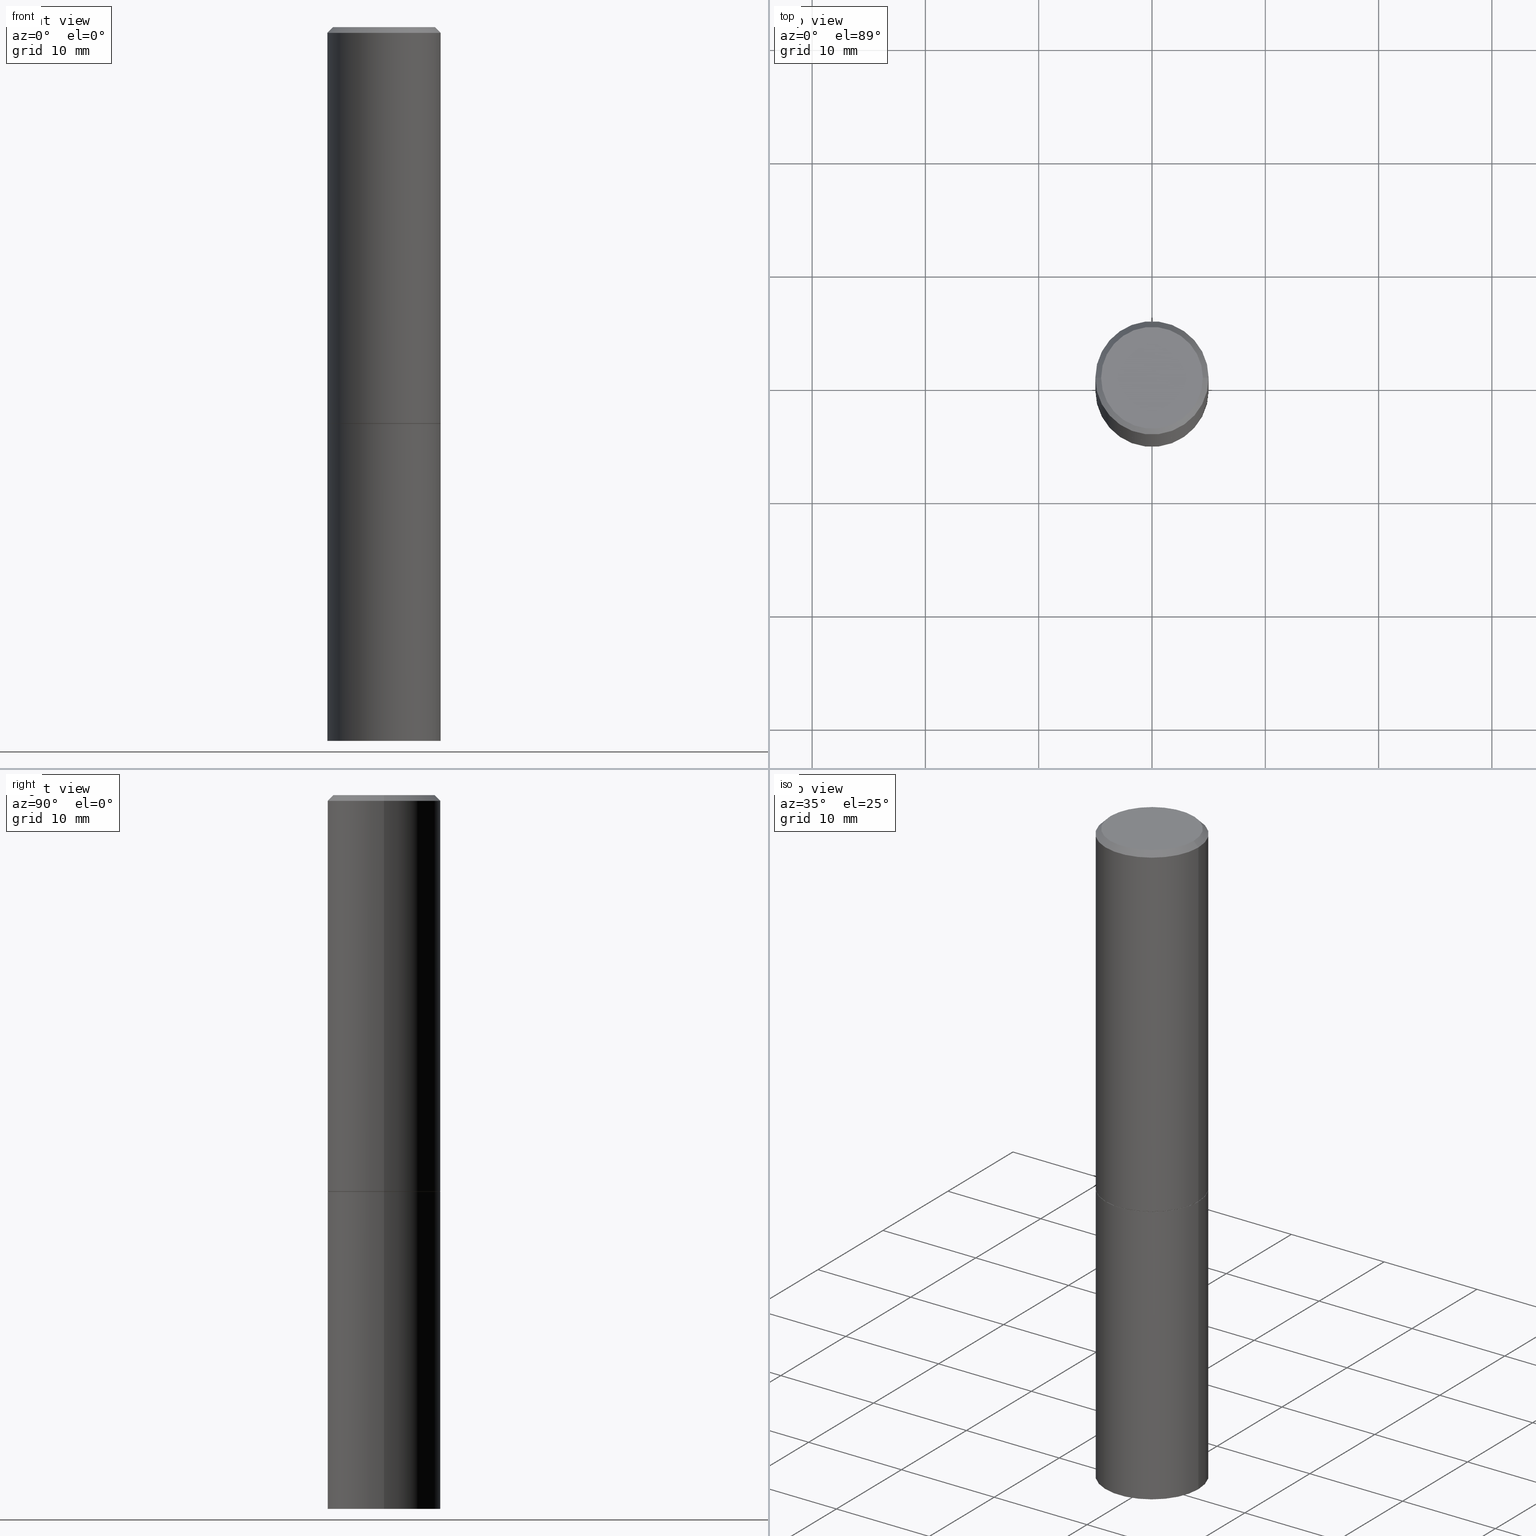
[diagram: canonical four-view strip — front | top / right | iso, engineering-drawing reading convention]
A machine part, canonical four-view strip (front | top / right | iso — engineering-drawing reading convention). The complete STEP part file that produces these views, byte-faithful:
ISO-10303-21;
HEADER;
FILE_DESCRIPTION (( 'STEP AP203' ),
    '1' );
FILE_NAME ('82986.STEP',
    '2024-02-29T20:51:39',
    ( '' ),
    ( '' ),
    'SwSTEP 2.0',
    'SolidWorks 2023',
    '' );
FILE_SCHEMA (( 'CONFIG_CONTROL_DESIGN' ));
ENDSEC;

DATA;
#1 = CARTESIAN_POINT ( 'NONE',  ( 3.369611468042499724E-29, -4.810912136791970439E-15, -1.377900000000000125 ) ) ;
#2 = CC_DESIGN_DATE_AND_TIME_ASSIGNMENT ( #222, #160, ( #39 ) ) ;
#3 = CYLINDRICAL_SURFACE ( 'NONE', #239, 0.1968500000000000250 ) ;
#4 = CARTESIAN_POINT ( 'NONE',  ( 0.000000000000000000, 0.000000000000000000, 0.000000000000000000 ) ) ;
#5 = DIRECTION ( 'NONE',  ( -1.000000000000000000, 6.982962677686265922E-15, -4.876176775795935793E-29 ) ) ;
#6 = CLOSED_SHELL ( 'NONE', ( #296, #141, #340, #243, #123, #98, #76, #192 ) ) ;
#7 =( NAMED_UNIT ( * ) SI_UNIT ( $, .STERADIAN. ) SOLID_ANGLE_UNIT ( ) );
#8 = EDGE_CURVE ( 'NONE', #301, #14, #127, .T. ) ;
#9 = CONICAL_SURFACE ( 'NONE', #138, 0.1958499999999999963, 0.7853981633975165577 ) ;
#10 = AXIS2_PLACEMENT_3D ( 'NONE', #164, #58, #174 ) ;
#11 = CARTESIAN_POINT ( 'NONE',  ( 3.369611468042499724E-29, -4.810912136791970439E-15, -1.377900000000000125 ) ) ;
#12 = APPROVAL ( #89, 'UNSPECIFIED' ) ;
#13 = PERSON_AND_ORGANIZATION ( #113, #158 ) ;
#14 = VERTEX_POINT ( 'NONE', #44 ) ;
#15 = COORDINATED_UNIVERSAL_TIME_OFFSET ( 5, 0, .BEHIND. ) ;
#16 = CARTESIAN_POINT ( 'NONE',  ( -0.1968500000000000250, -5.336713275418556283E-15, -2.480300000000000171 ) ) ;
#17 = EDGE_CURVE ( 'NONE', #14, #152, #156, .T. ) ;
#18 = ORIENTED_EDGE ( 'NONE', *, *, #229, .F. ) ;
#19 = COORDINATED_UNIVERSAL_TIME_OFFSET ( 5, 0, .BEHIND. ) ;
#20 = ORIENTED_EDGE ( 'NONE', *, *, #148, .F. ) ;
#21 = ORIENTED_EDGE ( 'NONE', *, *, #236, .T. ) ;
#22 = EDGE_LOOP ( 'NONE', ( #101, #149, #20, #188 ) ) ;
#23 = PERSON_AND_ORGANIZATION_ROLE ( 'design_supplier' ) ;
#24 = ORIENTED_EDGE ( 'NONE', *, *, #107, .F. ) ;
#25 = CARTESIAN_POINT ( 'NONE',  ( 3.369611468042499724E-29, -4.810912136791970439E-15, -1.377900000000000125 ) ) ;
#26 = AXIS2_PLACEMENT_3D ( 'NONE', #291, #29, #5 ) ;
#27 = DIRECTION ( 'NONE',  ( 2.438088387897960049E-29, -3.491481338843145188E-15, -1.000000000000000000 ) ) ;
#28 = CARTESIAN_POINT ( 'NONE',  ( 3.369611468042499163E-29, -4.810912136791969650E-15, -1.377899999999999903 ) ) ;
#29 = DIRECTION ( 'NONE',  ( 2.438088387897960049E-29, -3.491481338843145188E-15, -1.000000000000000000 ) ) ;
#30 = DIRECTION ( 'NONE',  ( -1.000000000000000000, 6.982962677686265922E-15, -4.876176775795935793E-29 ) ) ;
#31 = CIRCLE ( 'NONE', #329, 0.1968499999999997752 ) ;
#32 = CONICAL_SURFACE ( 'NONE', #322, 0.1968499999999997752, 0.7853981633974469467 ) ;
#33 = LINE ( 'NONE', #172, #147 ) ;
#34 = CC_DESIGN_SECURITY_CLASSIFICATION ( #330, ( #190 ) ) ;
#35 = CARTESIAN_POINT ( 'NONE',  ( 0.1968500000000000250, -6.185508339894512836E-15, -1.377900000000000125 ) ) ;
#36 = EDGE_CURVE ( 'NONE', #152, #270, #31, .T. ) ;
#37 =( LENGTH_UNIT ( ) NAMED_UNIT ( * ) SI_UNIT ( $, .METRE. ) );
#38 = VECTOR ( 'NONE', #366, 39.37007874015748143 ) ;
#39 = PRODUCT_DEFINITION ( 'UNKNOWN', '', #190, #118 ) ;
#40 = APPLICATION_PROTOCOL_DEFINITION ( 'international standard', 'config_control_design', 1994, #220 ) ;
#41 = ORIENTED_EDGE ( 'NONE', *, *, #8, .T. ) ;
#42 = EDGE_LOOP ( 'NONE', ( #252, #94, #354, #331 ) ) ;
#43 = EDGE_CURVE ( 'NONE', #63, #283, #221, .T. ) ;
#44 = CARTESIAN_POINT ( 'NONE',  ( 0.1968499999999999417, -6.182016858555667463E-15, -1.376900000000000013 ) ) ;
#45 = DATE_AND_TIME ( #244, #82 ) ;
#46 = ORIENTED_EDGE ( 'NONE', *, *, #148, .T. ) ;
#47 = PERSON_AND_ORGANIZATION ( #113, #158 ) ;
#48 = CARTESIAN_POINT ( 'NONE',  ( 1.234936949548814617E-15, 0.1768499999999997851, -6.153342185293593634E-16 ) ) ;
#49 = ORIENTED_EDGE ( 'NONE', *, *, #168, .T. ) ;
#50 = CALENDAR_DATE ( 2024, 29, 2 ) ;
#51 = CIRCLE ( 'NONE', #357, 0.1968499999999999417 ) ;
#52 = DIRECTION ( 'NONE',  ( 1.000000000000000000, -6.982962677686266711E-15, 4.876176775795935793E-29 ) ) ;
#53 = CARTESIAN_POINT ( 'NONE',  ( -0.1968499999999998307, 1.398703375343756013E-15, -9.682923725166775270E-30 ) ) ;
#54 = CARTESIAN_POINT ( 'NONE',  ( -0.1958499999999999963, -3.414015734457591258E-15, -1.377899999999999903 ) ) ;
#55 = FACE_OUTER_BOUND ( 'NONE', #215, .T. ) ;
#56 = DIRECTION ( 'NONE',  ( 1.000000000000000000, -6.982962677686268288E-15, 0.000000000000000000 ) ) ;
#57 = DIRECTION ( 'NONE',  ( 2.445468806185136597E-29, -3.491481338843145583E-15, -1.000000000000000000 ) ) ;
#58 = DIRECTION ( 'NONE',  ( -2.445468806185136597E-29, 3.491481338843145583E-15, 1.000000000000000000 ) ) ;
#59 = AXIS2_PLACEMENT_3D ( 'NONE', #290, #57, #108 ) ;
#60 = APPROVAL ( #180, 'UNSPECIFIED' ) ;
#61 = CARTESIAN_POINT ( 'NONE',  ( 0.000000000000000000, 0.000000000000000000, 0.000000000000000000 ) ) ;
#62 = AXIS2_PLACEMENT_3D ( 'NONE', #11, #216, #186 ) ;
#63 = VERTEX_POINT ( 'NONE', #54 ) ;
#64 = DATE_AND_TIME ( #135, #161 ) ;
#65 = CC_DESIGN_DATE_AND_TIME_ASSIGNMENT ( #64, #155, ( #330 ) ) ;
#66 = ORIENTED_EDGE ( 'NONE', *, *, #129, .T. ) ;
#67 = CIRCLE ( 'NONE', #344, 0.1968499999999999417 ) ;
#68 = VERTEX_POINT ( 'NONE', #162 ) ;
#69 = ORIENTED_EDGE ( 'NONE', *, *, #278, .F. ) ;
#70 = EDGE_CURVE ( 'NONE', #283, #270, #195, .T. ) ;
#71 = PERSON_AND_ORGANIZATION_ROLE ( 'design_owner' ) ;
#72 = ORIENTED_EDGE ( 'NONE', *, *, #356, .F. ) ;
#73 = DIRECTION ( 'NONE',  ( 0.000000000000000000, 0.000000000000000000, 1.000000000000000000 ) ) ;
#74 = AXIS2_PLACEMENT_3D ( 'NONE', #1, #362, #102 ) ;
#75 = DIRECTION ( 'NONE',  ( -2.445468806185136597E-29, 3.491481338843145583E-15, 1.000000000000000000 ) ) ;
#76 = ADVANCED_FACE ( 'NONE', ( #200 ), #289, .F. ) ;
#77 = CARTESIAN_POINT ( 'NONE',  ( 0.1968499999999997752, -1.420318657638187544E-15, -0.02000000000000004205 ) ) ;
#78 = CARTESIAN_POINT ( 'NONE',  ( 4.890937612370283668E-31, -6.982962677686305168E-17, -0.02000000000000004205 ) ) ;
#79 = CARTESIAN_POINT ( 'NONE',  ( 4.890937612370283668E-31, -6.982962677686305168E-17, -0.02000000000000004205 ) ) ;
#80 = AXIS2_PLACEMENT_3D ( 'NONE', #142, #114, #231 ) ;
#81 = CARTESIAN_POINT ( 'NONE',  ( -0.1958499999999999963, -3.419314188805812871E-15, -1.377899999999999903 ) ) ;
#82 = LOCAL_TIME ( 15, 51, 39.00000000000000000, #15 ) ;
#83 = DIRECTION ( 'NONE',  ( -2.445468806185136877E-29, 3.491481338843145188E-15, 1.000000000000000000 ) ) ;
#84 = LINE ( 'NONE', #316, #38 ) ;
#85 = DIRECTION ( 'NONE',  ( 1.000000000000000000, -6.982962677686268288E-15, 0.000000000000000000 ) ) ;
#86 = VECTOR ( 'NONE', #191, 39.37007874015748143 ) ;
#87 = ORIENTED_EDGE ( 'NONE', *, *, #273, .T. ) ;
#88 =( NAMED_UNIT ( * ) PLANE_ANGLE_UNIT ( ) SI_UNIT ( $, .RADIAN. ) );
#89 = APPROVAL_STATUS ( 'not_yet_approved' ) ;
#90 = ORIENTED_EDGE ( 'NONE', *, *, #136, .T. ) ;
#91 = CARTESIAN_POINT ( 'NONE',  ( 3.367165999236314681E-29, -4.807420655453126643E-15, -1.376900000000000013 ) ) ;
#92 = VERTEX_POINT ( 'NONE', #169 ) ;
#93 = SHAPE_DEFINITION_REPRESENTATION ( #202, #207 ) ;
#94 = ORIENTED_EDGE ( 'NONE', *, *, #107, .T. ) ;
#95 = CIRCLE ( 'NONE', #271, 0.1968500000000000250 ) ;
#96 = VECTOR ( 'NONE', #233, 39.37007874015748143 ) ;
#97 = EDGE_LOOP ( 'NONE', ( #90, #21 ) ) ;
#98 = ADVANCED_FACE ( 'NONE', ( #334 ), #9, .T. ) ;
#99 = CARTESIAN_POINT ( 'NONE',  ( 0.1968499999999997752, -1.420318657638187544E-15, -0.02000000000000004205 ) ) ;
#100 = ORIENTED_EDGE ( 'NONE', *, *, #17, .F. ) ;
#101 = ORIENTED_EDGE ( 'NONE', *, *, #204, .T. ) ;
#102 = DIRECTION ( 'NONE',  ( 1.000000000000000000, -6.982962677686265922E-15, 4.876176775795935793E-29 ) ) ;
#103 = PERSON_AND_ORGANIZATION ( #113, #158 ) ;
#104 = DIRECTION ( 'NONE',  ( -2.445468806185136597E-29, 3.491481338843145583E-15, 1.000000000000000000 ) ) ;
#105 = CIRCLE ( 'NONE', #297, 0.1768499999999997851 ) ;
#106 = DIRECTION ( 'NONE',  ( 1.000000000000000000, -6.982962677686266711E-15, 4.875932113059884174E-29 ) ) ;
#107 = EDGE_CURVE ( 'NONE', #283, #14, #67, .T. ) ;
#108 = DIRECTION ( 'NONE',  ( -1.000000000000000000, 6.982962677686266711E-15, 0.000000000000000000 ) ) ;
#109 = CARTESIAN_POINT ( 'NONE',  ( -0.1768499999999997851, 1.269851762937246069E-15, 4.268512490091652920E-18 ) ) ;
#110 = CARTESIAN_POINT ( 'NONE',  ( 0.1968499999999998307, -1.374596203102540425E-15, 9.598753983154291049E-30 ) ) ;
#111 = FACE_OUTER_BOUND ( 'NONE', #22, .T. ) ;
#112 = DIMENSIONAL_EXPONENTS ( 1.000000000000000000, 0.000000000000000000, 0.000000000000000000, 0.000000000000000000, 0.000000000000000000, 0.000000000000000000, 0.000000000000000000 ) ;
#113 = PERSON ( 'UNSPECIFIED', 'UNSPECIFIED', 'UNSPECIFIED', ('UNSPECIFIED'), ('UNSPECIFIED'), ('UNSPECIFIED') ) ;
#114 = DIRECTION ( 'NONE',  ( -2.445468806185136597E-29, 3.491481338843145583E-15, 1.000000000000000000 ) ) ;
#115 = CIRCLE ( 'NONE', #272, 0.1958499999999999963 ) ;
#116 = DIRECTION ( 'NONE',  ( 0.7071067811865465735, -7.319954787623252890E-15, -0.7071067811865484609 ) ) ;
#117 = APPROVAL ( #361, 'UNSPECIFIED' ) ;
#118 = DESIGN_CONTEXT ( 'detailed design', #220, 'design' ) ;
#119 = CARTESIAN_POINT ( 'NONE',  ( 3.369611468042499163E-29, -4.810912136791969650E-15, -1.377899999999999903 ) ) ;
#120 = PLANE ( 'NONE',  #257 ) ;
#121 = APPLICATION_PROTOCOL_DEFINITION ( 'international standard', 'config_control_design', 1994, #286 ) ;
#122 = AXIS2_PLACEMENT_3D ( 'NONE', #61, #218, #350 ) ;
#123 = ADVANCED_FACE ( 'NONE', ( #310 ), #261, .T. ) ;
#124 = CC_DESIGN_PERSON_AND_ORGANIZATION_ASSIGNMENT ( #282, #23, ( #190 ) ) ;
#125 = AXIS2_PLACEMENT_3D ( 'NONE', #336, #75, #347 ) ;
#126 = CALENDAR_DATE ( 2024, 29, 2 ) ;
#127 = LINE ( 'NONE', #214, #209 ) ;
#128 = ORIENTED_EDGE ( 'NONE', *, *, #266, .T. ) ;
#129 = EDGE_CURVE ( 'NONE', #277, #159, #95, .T. ) ;
#130 = PERSON_AND_ORGANIZATION ( #113, #158 ) ;
#131 = ORIENTED_EDGE ( 'NONE', *, *, #129, .F. ) ;
#132 = EDGE_LOOP ( 'NONE', ( #237, #242, #217, #304 ) ) ;
#133 = DIRECTION ( 'NONE',  ( 1.000000000000000000, 0.000000000000000000, 0.000000000000000000 ) ) ;
#134 = DIRECTION ( 'NONE',  ( 1.000000000000000000, -6.982962677686266711E-15, 0.000000000000000000 ) ) ;
#135 = CALENDAR_DATE ( 2024, 29, 2 ) ;
#136 = EDGE_CURVE ( 'NONE', #179, #92, #288, .T. ) ;
#137 = DIRECTION ( 'NONE',  ( 1.000000000000000000, -6.982962677686268288E-15, 0.000000000000000000 ) ) ;
#138 = AXIS2_PLACEMENT_3D ( 'NONE', #28, #226, #137 ) ;
#139 = CARTESIAN_POINT ( 'NONE',  ( -0.1968500000000000250, -5.336713275418556283E-15, -1.377900000000000125 ) ) ;
#140 = DIRECTION ( 'NONE',  ( -2.445468806185136597E-29, 3.491481338843145583E-15, 1.000000000000000000 ) ) ;
#141 = ADVANCED_FACE ( 'NONE', ( #146 ), #175, .T. ) ;
#142 = CARTESIAN_POINT ( 'NONE',  ( 6.065496279980994755E-29, -8.659921164732655335E-15, -2.480300000000000171 ) ) ;
#143 = CARTESIAN_POINT ( 'NONE',  ( 1.374596203102602153E-15, 0.1968499999999913375, -2.480300000000001059 ) ) ;
#144 = LOCAL_TIME ( 15, 51, 39.00000000000000000, #193 ) ;
#145 = CARTESIAN_POINT ( 'NONE',  ( 3.369611468042499163E-29, -4.810912136791969650E-15, -1.377899999999999903 ) ) ;
#146 = FACE_OUTER_BOUND ( 'NONE', #351, .T. ) ;
#147 = VECTOR ( 'NONE', #83, 39.37007874015748143 ) ;
#148 = EDGE_CURVE ( 'NONE', #14, #283, #51, .T. ) ;
#149 = ORIENTED_EDGE ( 'NONE', *, *, #43, .T. ) ;
#150 = PERSON_AND_ORGANIZATION ( #113, #158 ) ;
#151 = MANIFOLD_SOLID_BREP ( 'Body-Move/Copy2[2]', #6 ) ;
#152 = VERTEX_POINT ( 'NONE', #99 ) ;
#153 = AXIS2_PLACEMENT_3D ( 'NONE', #363, #171, #56 ) ;
#154 = VERTEX_POINT ( 'NONE', #16 ) ;
#155 = DATE_TIME_ROLE ( 'classification_date' ) ;
#156 = LINE ( 'NONE', #110, #86 ) ;
#157 = EDGE_CURVE ( 'NONE', #68, #159, #187, .T. ) ;
#158 = ORGANIZATION ( 'UNSPECIFIED', 'UNSPECIFIED', '' ) ;
#159 = VERTEX_POINT ( 'NONE', #35 ) ;
#160 = DATE_TIME_ROLE ( 'creation_date' ) ;
#161 = LOCAL_TIME ( 15, 51, 39.00000000000000000, #300 ) ;
#162 = CARTESIAN_POINT ( 'NONE',  ( 0.1968500000000000250, -1.003451736783519694E-14, -2.480300000000000171 ) ) ;
#163 = DIRECTION ( 'NONE',  ( -2.445468806185136597E-29, 3.491481338843145583E-15, 1.000000000000000000 ) ) ;
#164 = CARTESIAN_POINT ( 'NONE',  ( 6.065496279980994755E-29, -8.659921164732655335E-15, -2.480300000000000171 ) ) ;
#165 = AXIS2_PLACEMENT_3D ( 'NONE', #325, #73, #133 ) ;
#166 = CYLINDRICAL_SURFACE ( 'NONE', #319, 0.1968500000000000250 ) ;
#167 = DIRECTION ( 'NONE',  ( -2.445468806185136597E-29, 3.491481338843145583E-15, 1.000000000000000000 ) ) ;
#168 = EDGE_CURVE ( 'NONE', #92, #152, #263, .T. ) ;
#169 = CARTESIAN_POINT ( 'NONE',  ( 0.1768499999999997851, -1.316798864272040563E-15, 4.268512490109333727E-18 ) ) ;
#170 = PLANE ( 'NONE',  #26 ) ;
#171 = DIRECTION ( 'NONE',  ( -2.445468806185136597E-29, 3.491481338843145583E-15, 1.000000000000000000 ) ) ;
#172 = CARTESIAN_POINT ( 'NONE',  ( -0.1968500000000000250, 1.398703375343757393E-15, -9.682923725166783677E-30 ) ) ;
#173 = CC_DESIGN_APPROVAL ( #60, ( #190 ) ) ;
#174 = DIRECTION ( 'NONE',  ( 1.000000000000000000, -6.982962677686267499E-15, 0.000000000000000000 ) ) ;
#175 = CYLINDRICAL_SURFACE ( 'NONE', #122, 0.1968499999999998307 ) ;
#176 = CC_DESIGN_PERSON_AND_ORGANIZATION_ASSIGNMENT ( #211, #275, ( #330 ) ) ;
#177 =( CONVERSION_BASED_UNIT ( 'INCH', #206 ) LENGTH_UNIT ( ) NAMED_UNIT ( #112 ) );
#178 = ORIENTED_EDGE ( 'NONE', *, *, #266, .F. ) ;
#179 = VERTEX_POINT ( 'NONE', #109 ) ;
#180 = APPROVAL_STATUS ( 'not_yet_approved' ) ;
#181 = AXIS2_PLACEMENT_3D ( 'NONE', #143, #27, #338 ) ;
#182 = DIRECTION ( 'NONE',  ( 0.7071067811865957564, -2.468850131082761932E-15, 0.7071067811864992780 ) ) ;
#183 = DATE_AND_TIME ( #126, #268 ) ;
#184 = EDGE_LOOP ( 'NONE', ( #358, #306, #328, #131 ) ) ;
#185 = MECHANICAL_CONTEXT ( 'NONE', #286, 'mechanical' ) ;
#186 = DIRECTION ( 'NONE',  ( 1.000000000000000000, -6.982962677686267499E-15, 0.000000000000000000 ) ) ;
#187 = LINE ( 'NONE', #303, #96 ) ;
#188 = ORIENTED_EDGE ( 'NONE', *, *, #8, .F. ) ;
#189 = ORIENTED_EDGE ( 'NONE', *, *, #36, .T. ) ;
#190 = PRODUCT_DEFINITION_FORMATION_WITH_SPECIFIED_SOURCE ( 'ANY', '', #317, .NOT_KNOWN. ) ;
#191 = DIRECTION ( 'NONE',  ( -2.445468806185136877E-29, 3.491481338843145188E-15, 1.000000000000000000 ) ) ;
#192 = ADVANCED_FACE ( 'NONE', ( #343 ), #120, .F. ) ;
#193 = COORDINATED_UNIVERSAL_TIME_OFFSET ( 5, 0, .BEHIND. ) ;
#194 = CARTESIAN_POINT ( 'NONE',  ( 0.000000000000000000, 0.000000000000000000, 0.000000000000000000 ) ) ;
#195 = LINE ( 'NONE', #53, #238 ) ;
#196 = CARTESIAN_POINT ( 'NONE',  ( -0.1968499999999997752, 1.304766576325676930E-15, -0.02000000000000004205 ) ) ;
#197 = CC_DESIGN_PERSON_AND_ORGANIZATION_ASSIGNMENT ( #150, #71, ( #317 ) ) ;
#198 = DIRECTION ( 'NONE',  ( -0.7071067811865957564, 7.493145998870527710E-15, 0.7071067811864992780 ) ) ;
#199 = DIRECTION ( 'NONE',  ( 2.445468806185136597E-29, -3.491481338843145583E-15, -1.000000000000000000 ) ) ;
#200 = FACE_OUTER_BOUND ( 'NONE', #324, .T. ) ;
#201 = DIRECTION ( 'NONE',  ( -2.445468806185136597E-29, 3.491481338843145583E-15, 1.000000000000000000 ) ) ;
#202 = PRODUCT_DEFINITION_SHAPE ( 'NONE', 'NONE',  #39 ) ;
#203 = DIRECTION ( 'NONE',  ( 1.000000000000000000, -6.982962677686266711E-15, 0.000000000000000000 ) ) ;
#204 = EDGE_CURVE ( 'NONE', #301, #63, #115, .T. ) ;
#205 = APPROVAL_PERSON_ORGANIZATION ( #13, #60, #302 ) ;
#206 = LENGTH_MEASURE_WITH_UNIT ( LENGTH_MEASURE( 0.02539999999999999897 ), #37 );
#207 = ADVANCED_BREP_SHAPE_REPRESENTATION ( '82986', ( #284, #151, #165 ), #235 ) ;
#208 = CC_DESIGN_PERSON_AND_ORGANIZATION_ASSIGNMENT ( #47, #359, ( #190 ) ) ;
#209 = VECTOR ( 'NONE', #182, 39.37007874015748143 ) ;
#210 = LOCAL_TIME ( 15, 51, 39.00000000000000000, #19 ) ;
#211 = PERSON_AND_ORGANIZATION ( #113, #158 ) ;
#212 = ORIENTED_EDGE ( 'NONE', *, *, #236, .F. ) ;
#213 = DIRECTION ( 'NONE',  ( -2.445468806185136597E-29, 3.491481338843145583E-15, 1.000000000000000000 ) ) ;
#214 = CARTESIAN_POINT ( 'NONE',  ( 0.1958499999999999963, -6.178525377216825244E-15, -1.377899999999999903 ) ) ;
#215 = EDGE_LOOP ( 'NONE', ( #348, #66 ) ) ;
#216 = DIRECTION ( 'NONE',  ( -2.445468806185136597E-29, 3.491481338843145583E-15, 1.000000000000000000 ) ) ;
#217 = ORIENTED_EDGE ( 'NONE', *, *, #234, .F. ) ;
#218 = DIRECTION ( 'NONE',  ( -2.445468806185136597E-29, 3.491481338843145583E-15, 1.000000000000000000 ) ) ;
#219 = ORIENTED_EDGE ( 'NONE', *, *, #278, .T. ) ;
#220 = APPLICATION_CONTEXT ( 'configuration controlled 3d designs of mechanical parts and assemblies' ) ;
#221 = LINE ( 'NONE', #81, #223 ) ;
#222 = DATE_AND_TIME ( #50, #144 ) ;
#223 = VECTOR ( 'NONE', #198, 39.37007874015748143 ) ;
#224 = DIRECTION ( 'NONE',  ( 1.000000000000000000, -6.982962677686267499E-15, 0.000000000000000000 ) ) ;
#225 = FACE_OUTER_BOUND ( 'NONE', #250, .T. ) ;
#226 = DIRECTION ( 'NONE',  ( -2.445468806185136597E-29, 3.491481338843145583E-15, 1.000000000000000000 ) ) ;
#227 = FACE_OUTER_BOUND ( 'NONE', #184, .T. ) ;
#228 = DIRECTION ( 'NONE',  ( 1.000000000000000000, -6.982962677686268288E-15, 0.000000000000000000 ) ) ;
#229 = EDGE_CURVE ( 'NONE', #154, #68, #299, .T. ) ;
#230 = VECTOR ( 'NONE', #116, 39.37007874015748143 ) ;
#231 = DIRECTION ( 'NONE',  ( 1.000000000000000000, -6.982962677686267499E-15, 0.000000000000000000 ) ) ;
#232 = DIRECTION ( 'NONE',  ( -2.445468806185136597E-29, 3.491481338843145583E-15, 1.000000000000000000 ) ) ;
#233 = DIRECTION ( 'NONE',  ( -2.445468806185136877E-29, 3.491481338843145188E-15, 1.000000000000000000 ) ) ;
#234 = EDGE_CURVE ( 'NONE', #159, #277, #345, .T. ) ;
#235 =( GEOMETRIC_REPRESENTATION_CONTEXT ( 3 ) GLOBAL_UNCERTAINTY_ASSIGNED_CONTEXT ( ( #255 ) ) GLOBAL_UNIT_ASSIGNED_CONTEXT ( ( #177, #88, #7 ) ) REPRESENTATION_CONTEXT ( 'NONE', 'WORKASPACE' ) );
#236 = EDGE_CURVE ( 'NONE', #92, #179, #105, .T. ) ;
#237 = ORIENTED_EDGE ( 'NONE', *, *, #356, .T. ) ;
#238 = VECTOR ( 'NONE', #360, 39.37007874015748143 ) ;
#239 = AXIS2_PLACEMENT_3D ( 'NONE', #194, #163, #265 ) ;
#240 = ORIENTED_EDGE ( 'NONE', *, *, #70, .T. ) ;
#241 = APPROVAL_DATE_TIME ( #305, #12 ) ;
#242 = ORIENTED_EDGE ( 'NONE', *, *, #253, .T. ) ;
#243 = ADVANCED_FACE ( 'NONE', ( #318 ), #313, .T. ) ;
#244 = CALENDAR_DATE ( 2024, 29, 2 ) ;
#245 = ORIENTED_EDGE ( 'NONE', *, *, #43, .F. ) ;
#246 = APPROVAL_DATE_TIME ( #183, #60 ) ;
#247 = ORIENTED_EDGE ( 'NONE', *, *, #204, .F. ) ;
#248 = AXIS2_PLACEMENT_3D ( 'NONE', #4, #308, #52 ) ;
#249 = CONICAL_SURFACE ( 'NONE', #364, 0.1958499999999999963, 0.7853981633975165577 ) ;
#250 = EDGE_LOOP ( 'NONE', ( #72, #18 ) ) ;
#251 = PERSON_AND_ORGANIZATION_ROLE ( 'creator' ) ;
#252 = ORIENTED_EDGE ( 'NONE', *, *, #70, .F. ) ;
#253 = EDGE_CURVE ( 'NONE', #154, #277, #33, .T. ) ;
#254 = PERSON_AND_ORGANIZATION ( #113, #158 ) ;
#255 = UNCERTAINTY_MEASURE_WITH_UNIT (LENGTH_MEASURE( 1.000000000000000082E-05 ), #177, 'distance_accuracy_value', 'NONE');
#256 = PLANE ( 'NONE',  #181 ) ;
#257 = AXIS2_PLACEMENT_3D ( 'NONE', #48, #312, #30 ) ;
#258 = CARTESIAN_POINT ( 'NONE',  ( 0.000000000000000000, 0.000000000000000000, 0.000000000000000000 ) ) ;
#259 = ADVANCED_FACE ( 'NONE', ( #227 ), #166, .T. ) ;
#260 = FACE_OUTER_BOUND ( 'NONE', #132, .T. ) ;
#261 = CYLINDRICAL_SURFACE ( 'NONE', #248, 0.1968499999999998307 ) ;
#262 = DIRECTION ( 'NONE',  ( 1.000000000000000000, -6.982962677686265922E-15, 4.876176775795935793E-29 ) ) ;
#263 = LINE ( 'NONE', #77, #230 ) ;
#264 = AXIS2_PLACEMENT_3D ( 'NONE', #311, #293, #203 ) ;
#265 = DIRECTION ( 'NONE',  ( 1.000000000000000000, -6.982962677686265922E-15, 4.876176775795935793E-29 ) ) ;
#266 = EDGE_CURVE ( 'NONE', #179, #270, #84, .T. ) ;
#267 = ADVANCED_FACE ( 'NONE', ( #225 ), #256, .T. ) ;
#268 = LOCAL_TIME ( 15, 51, 39.00000000000000000, #276 ) ;
#269 = CALENDAR_DATE ( 2024, 29, 2 ) ;
#270 = VERTEX_POINT ( 'NONE', #196 ) ;
#271 = AXIS2_PLACEMENT_3D ( 'NONE', #25, #104, #224 ) ;
#272 = AXIS2_PLACEMENT_3D ( 'NONE', #145, #167, #85 ) ;
#273 = EDGE_CURVE ( 'NONE', #270, #152, #294, .T. ) ;
#274 = ORIENTED_EDGE ( 'NONE', *, *, #136, .F. ) ;
#275 = PERSON_AND_ORGANIZATION_ROLE ( 'classification_officer' ) ;
#276 = COORDINATED_UNIVERSAL_TIME_OFFSET ( 5, 0, .BEHIND. ) ;
#277 = VERTEX_POINT ( 'NONE', #139 ) ;
#278 = EDGE_CURVE ( 'NONE', #63, #301, #280, .T. ) ;
#279 = CARTESIAN_POINT ( 'NONE',  ( -1.043851414335219820E-46, 1.490343170380447200E-32, 4.268512490100411279E-18 ) ) ;
#280 = CIRCLE ( 'NONE', #153, 0.1958499999999999963 ) ;
#281 = ORIENTED_EDGE ( 'NONE', *, *, #36, .F. ) ;
#282 = PERSON_AND_ORGANIZATION ( #113, #158 ) ;
#283 = VERTEX_POINT ( 'NONE', #337 ) ;
#284 = MANIFOLD_SOLID_BREP ( 'Body-Move/Copy2[1]', #321 ) ;
#285 = FACE_OUTER_BOUND ( 'NONE', #332, .T. ) ;
#286 = APPLICATION_CONTEXT ( 'configuration controlled 3d designs of mechanical parts and assemblies' ) ;
#287 = ADVANCED_FACE ( 'NONE', ( #260 ), #3, .T. ) ;
#288 = CIRCLE ( 'NONE', #125, 0.1768499999999997851 ) ;
#289 = PLANE ( 'NONE',  #74 ) ;
#290 = CARTESIAN_POINT ( 'NONE',  ( 4.890937612370283668E-31, -6.982962677686305168E-17, -0.02000000000000004205 ) ) ;
#291 = CARTESIAN_POINT ( 'NONE',  ( 1.374596203102575135E-15, 0.1968499999999951955, -1.377900000000000791 ) ) ;
#292 = DIRECTION ( 'NONE',  ( -2.445468806185136597E-29, 3.491481338843145583E-15, 1.000000000000000000 ) ) ;
#293 = DIRECTION ( 'NONE',  ( -2.445468806185136597E-29, 3.491481338843145583E-15, 1.000000000000000000 ) ) ;
#294 = CIRCLE ( 'NONE', #264, 0.1968499999999997752 ) ;
#295 = CC_DESIGN_APPROVAL ( #117, ( #330 ) ) ;
#296 = ADVANCED_FACE ( 'NONE', ( #111 ), #249, .T. ) ;
#297 = AXIS2_PLACEMENT_3D ( 'NONE', #279, #342, #106 ) ;
#298 = EDGE_LOOP ( 'NONE', ( #352, #274, #128, #87 ) ) ;
#299 = CIRCLE ( 'NONE', #10, 0.1968500000000000250 ) ;
#300 = COORDINATED_UNIVERSAL_TIME_OFFSET ( 5, 0, .BEHIND. ) ;
#301 = VERTEX_POINT ( 'NONE', #339 ) ;
#302 = APPROVAL_ROLE ( '' ) ;
#303 = CARTESIAN_POINT ( 'NONE',  ( 0.1968500000000000250, -1.374596203102541608E-15, 9.598753983154300858E-30 ) ) ;
#304 = ORIENTED_EDGE ( 'NONE', *, *, #157, .F. ) ;
#305 = DATE_AND_TIME ( #269, #210 ) ;
#306 = ORIENTED_EDGE ( 'NONE', *, *, #229, .T. ) ;
#307 = APPROVAL_PERSON_ORGANIZATION ( #103, #12, #327 ) ;
#308 = DIRECTION ( 'NONE',  ( -2.445468806185136597E-29, 3.491481338843145583E-15, 1.000000000000000000 ) ) ;
#309 = CARTESIAN_POINT ( 'NONE',  ( 3.367165999236314681E-29, -4.807420655453126643E-15, -1.376900000000000013 ) ) ;
#310 = FACE_OUTER_BOUND ( 'NONE', #42, .T. ) ;
#311 = CARTESIAN_POINT ( 'NONE',  ( 4.890937612370283668E-31, -6.982962677686305168E-17, -0.02000000000000004205 ) ) ;
#312 = DIRECTION ( 'NONE',  ( 2.438088387897960049E-29, -3.491481338843145188E-15, -1.000000000000000000 ) ) ;
#313 = CONICAL_SURFACE ( 'NONE', #59, 0.1968499999999997752, 0.7853981633974469467 ) ;
#314 = DIRECTION ( 'NONE',  ( -1.000000000000000000, 6.982962677686266711E-15, 0.000000000000000000 ) ) ;
#315 = CC_DESIGN_PERSON_AND_ORGANIZATION_ASSIGNMENT ( #130, #251, ( #39 ) ) ;
#316 = CARTESIAN_POINT ( 'NONE',  ( -0.1968499999999997752, 1.304766576325676930E-15, -0.02000000000000004205 ) ) ;
#317 = PRODUCT ( '82986', '82986', '', ( #185 ) ) ;
#318 = FACE_OUTER_BOUND ( 'NONE', #298, .T. ) ;
#319 = AXIS2_PLACEMENT_3D ( 'NONE', #258, #201, #262 ) ;
#320 = PRODUCT_RELATED_PRODUCT_CATEGORY ( 'detail', '', ( #317 ) ) ;
#321 = CLOSED_SHELL ( 'NONE', ( #287, #267, #346, #259 ) ) ;
#322 = AXIS2_PLACEMENT_3D ( 'NONE', #79, #199, #314 ) ;
#323 = APPROVAL_PERSON_ORGANIZATION ( #254, #117, #335 ) ;
#324 = EDGE_LOOP ( 'NONE', ( #247, #69 ) ) ;
#325 = CARTESIAN_POINT ( 'NONE',  ( 0.000000000000000000, 0.000000000000000000, 0.000000000000000000 ) ) ;
#326 = DIRECTION ( 'NONE',  ( 1.000000000000000000, -6.982962677686265922E-15, 0.000000000000000000 ) ) ;
#327 = APPROVAL_ROLE ( '' ) ;
#328 = ORIENTED_EDGE ( 'NONE', *, *, #157, .T. ) ;
#329 = AXIS2_PLACEMENT_3D ( 'NONE', #78, #292, #134 ) ;
#330 = SECURITY_CLASSIFICATION ( '', '', #355 ) ;
#331 = ORIENTED_EDGE ( 'NONE', *, *, #273, .F. ) ;
#332 = EDGE_LOOP ( 'NONE', ( #212, #49, #189, #178 ) ) ;
#333 = EDGE_LOOP ( 'NONE', ( #245, #219, #41, #24 ) ) ;
#334 = FACE_OUTER_BOUND ( 'NONE', #333, .T. ) ;
#335 = APPROVAL_ROLE ( '' ) ;
#336 = CARTESIAN_POINT ( 'NONE',  ( -1.043851414335219820E-46, 1.490343170380447200E-32, 4.268512490100411279E-18 ) ) ;
#337 = CARTESIAN_POINT ( 'NONE',  ( -0.1968499999999999417, -1.039921765771237577E-15, -1.376900000000000013 ) ) ;
#338 = DIRECTION ( 'NONE',  ( -1.000000000000000000, 6.982962677686265922E-15, -4.876176775795935793E-29 ) ) ;
#339 = CARTESIAN_POINT ( 'NONE',  ( 0.1958499999999999963, -6.178525377216825244E-15, -1.377899999999999903 ) ) ;
#340 = ADVANCED_FACE ( 'NONE', ( #285 ), #32, .T. ) ;
#341 = CIRCLE ( 'NONE', #80, 0.1968500000000000250 ) ;
#342 = DIRECTION ( 'NONE',  ( -2.445468806185136597E-29, 3.491481338843145583E-15, 1.000000000000000000 ) ) ;
#343 = FACE_OUTER_BOUND ( 'NONE', #97, .T. ) ;
#344 = AXIS2_PLACEMENT_3D ( 'NONE', #309, #140, #365 ) ;
#345 = CIRCLE ( 'NONE', #62, 0.1968500000000000250 ) ;
#346 = ADVANCED_FACE ( 'NONE', ( #55 ), #170, .F. ) ;
#347 = DIRECTION ( 'NONE',  ( 1.000000000000000000, -6.982962677686266711E-15, 4.875932113059884174E-29 ) ) ;
#348 = ORIENTED_EDGE ( 'NONE', *, *, #234, .T. ) ;
#349 = CC_DESIGN_APPROVAL ( #12, ( #39 ) ) ;
#350 = DIRECTION ( 'NONE',  ( 1.000000000000000000, -6.982962677686266711E-15, 4.876176775795935793E-29 ) ) ;
#351 = EDGE_LOOP ( 'NONE', ( #46, #240, #281, #100 ) ) ;
#352 = ORIENTED_EDGE ( 'NONE', *, *, #168, .F. ) ;
#353 = APPROVAL_DATE_TIME ( #45, #117 ) ;
#354 = ORIENTED_EDGE ( 'NONE', *, *, #17, .T. ) ;
#355 = SECURITY_CLASSIFICATION_LEVEL ( 'unclassified' ) ;
#356 = EDGE_CURVE ( 'NONE', #68, #154, #341, .T. ) ;
#357 = AXIS2_PLACEMENT_3D ( 'NONE', #91, #213, #326 ) ;
#358 = ORIENTED_EDGE ( 'NONE', *, *, #253, .F. ) ;
#359 = PERSON_AND_ORGANIZATION_ROLE ( 'creator' ) ;
#360 = DIRECTION ( 'NONE',  ( -2.445468806185136877E-29, 3.491481338843145188E-15, 1.000000000000000000 ) ) ;
#361 = APPROVAL_STATUS ( 'not_yet_approved' ) ;
#362 = DIRECTION ( 'NONE',  ( -2.438088387897960049E-29, 3.491481338843145188E-15, 1.000000000000000000 ) ) ;
#363 = CARTESIAN_POINT ( 'NONE',  ( 3.369611468042499163E-29, -4.810912136791969650E-15, -1.377899999999999903 ) ) ;
#364 = AXIS2_PLACEMENT_3D ( 'NONE', #119, #232, #228 ) ;
#365 = DIRECTION ( 'NONE',  ( 1.000000000000000000, -6.982962677686265922E-15, 0.000000000000000000 ) ) ;
#366 = DIRECTION ( 'NONE',  ( -0.7071067811865465735, 2.468850131082246805E-15, -0.7071067811865484609 ) ) ;
ENDSEC;
END-ISO-10303-21;
